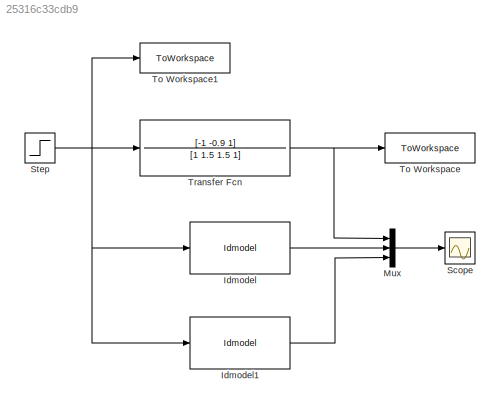
MODEL slx_25316c33cdb9
KIND model
CONFIG AbsTol = auto
CONFIG EnableMultiTasking = off
CONFIG FixedStep = 0.01
CONFIG MaxStep = auto
CONFIG MinStep = auto
CONFIG RelTol = 1e-3
CONFIG SampleTimeConstraint = Unconstrained
CONFIG Solver = FixedStepAuto
CONFIG SolverName = FixedStepAuto
CONFIG StartTime = 0.0
CONFIG StopTime = 20
BLOCK [Reference] Idmodel  REF=slident/Models/Idmodel  (lib defined in mdl_f7d4911ca73a)
  Ports = [1, 1]
  SourceBlock = slident/Models/Idmodel
  SourceProductBaseCode = ID
  SourceProductName = System Identification Toolbox
  SourceType = Idmodel Block
BLOCK [Reference] Idmodel1  REF=slident/Models/Idmodel  (lib defined in mdl_f7d4911ca73a)
  Ports = [1, 1]
  SourceBlock = slident/Models/Idmodel
  SourceProductBaseCode = ID
  SourceProductName = System Identification Toolbox
  SourceType = Idmodel Block
BLOCK [Mux] Mux
  DisplayOption = bar
  Inputs = 3
  Ports = [3, 1]
BLOCK [Scope] Scope
  Floating = off
  NumInputPorts = 1
  Ports = [1]
  ScopeSpecificationString = Simulink.scopes.TimeScopeBlockCfg('CurrentConfiguration', extmgr.ConfigurationSet(extmgr.Configuration('Core','General UI',true),extmgr.Configuration('Core','Source UI',true),extmgr.Configuration('Sources','WiredSimulink',true),extmgr.Configuration('Visuals','Time Domain',true,'SerializedDisplays',{struct('MinYLimReal','-0.80037','MaxYLimReal','1.85986','YLabelReal','','MinYLimMag','0.00000','MaxY...<+1482ch>
BLOCK [Step] Step
  SampleTime = 0.01
BLOCK [ToWorkspace] To Workspace
  FixptAsFi = on
  MaxDataPoints = inf
  Ports = [1]
  SampleTime = -1
  VariableName = output
BLOCK [ToWorkspace] To Workspace1
  FixptAsFi = on
  MaxDataPoints = inf
  Ports = [1]
  SampleTime = -1
  VariableName = input
BLOCK [TransferFcn] Transfer Fcn
  Denominator = [1 1.5 1.5 1]
  Numerator = [-1 -0.9 1]
LINE Idmodel1:1 -> Mux:3
LINE Idmodel:1 -> Mux:2
LINE Mux:1 -> Scope:1
NET Step:1 -> Idmodel1:1, Idmodel:1, To Workspace1:1, Transfer Fcn:1
NET Transfer Fcn:1 -> Mux:1, To Workspace:1
note: NET lines group one-source signal fan-out (src -> all destinations, sorted); 1:1 wires keep LINE
